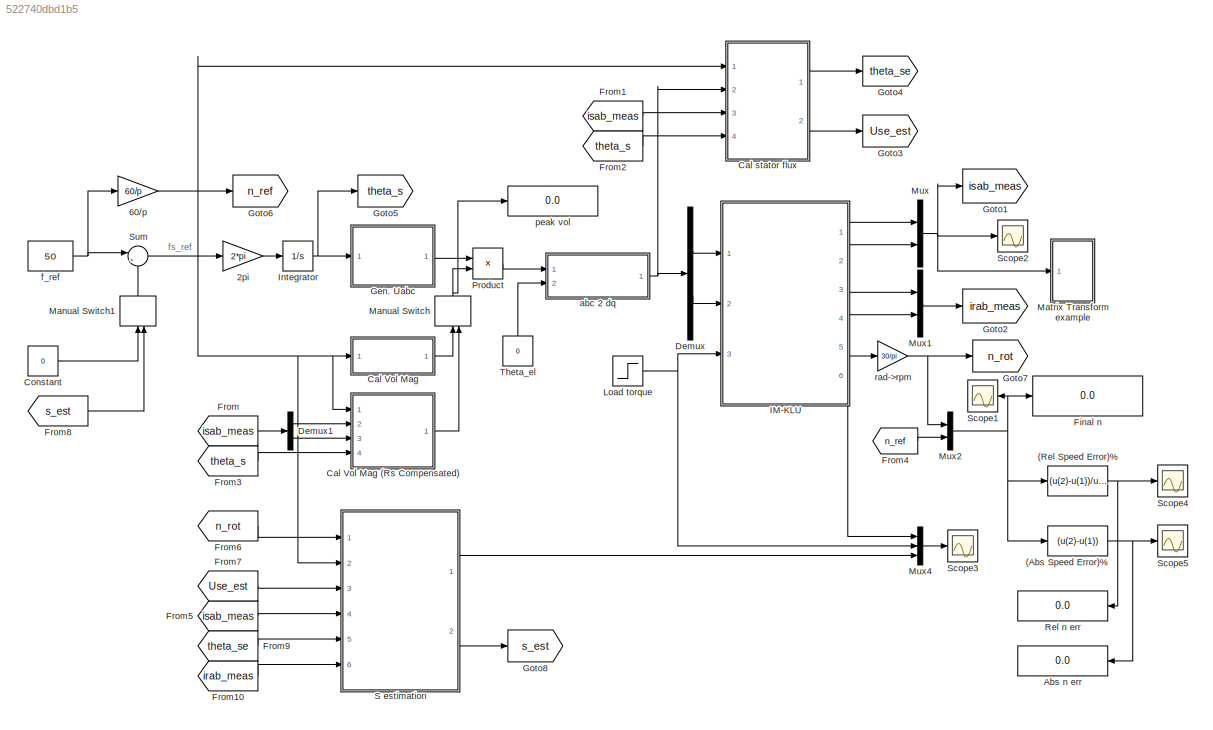
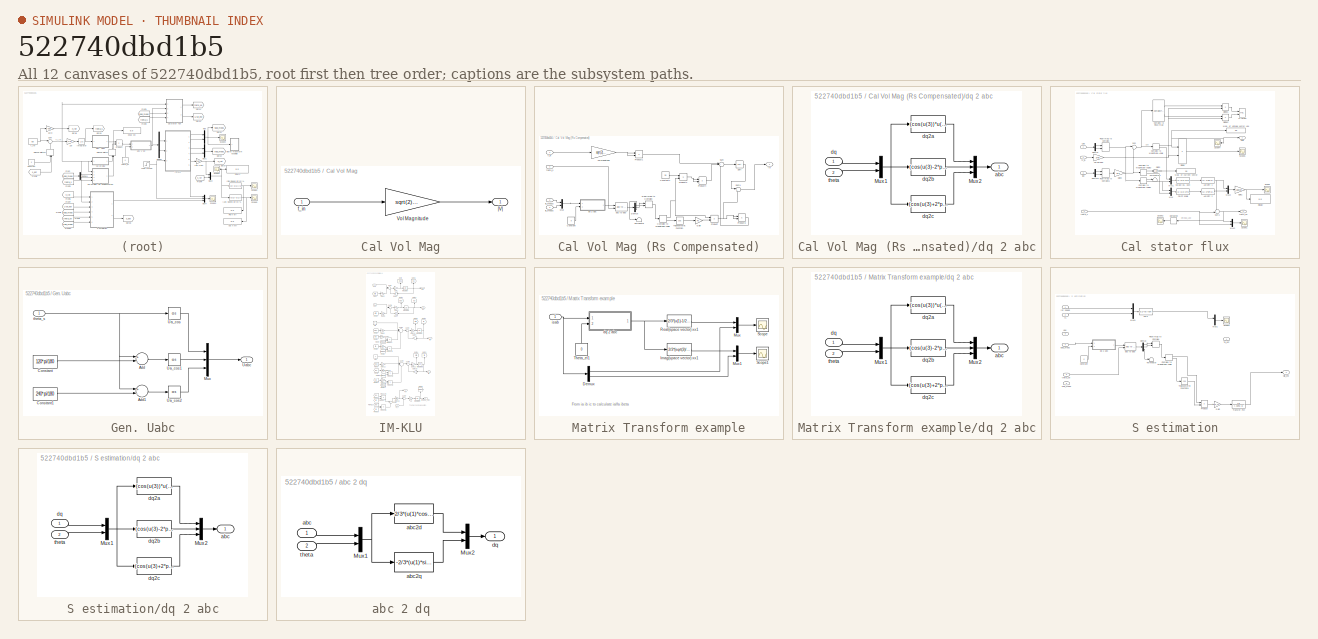
[diagram: thumbnail index - all 12 canvases of the model, root first then tree order]
MODEL slx_522740dbd1b5
KIND model
BLOCK [Fcn] (Abs Speed Error)%
  Expr = (u(2)-u(1))
BLOCK [Fcn] (Rel Speed Error)%
  Expr = (u(2)-u(1))/u(2)*100
BLOCK [Gain] 2pi
  Gain = 2*pi
  OutDataTypeStr = Inherit: Inherit via internal rule
  ParamDataTypeStr = Inherit: Inherit via internal rule
  SaturateOnIntegerOverflow = off
BLOCK [Gain] 60//p
  Gain = 60/p
  OutDataTypeStr = Inherit: Inherit via internal rule
  ParamDataTypeStr = Inherit: Inherit via internal rule
  SaturateOnIntegerOverflow = off
BLOCK [Display] Abs n err
  Decimation = 1
  Ports = [1]
BLOCK [SubSystem] Cal Vol Mag
  FunctionWithSeparateData = off
  MaskHideContents = off
  MinAlgLoopOccurrences = off
  Opaque = off
  Ports = [1, 1]
  PropExecContextOutsideSubsystem = off
  RTWSystemCode = Auto
  RequestExecContextInheritance = off
BLOCK [SubSystem] Cal Vol Mag (Rs Compensated)
  FunctionWithSeparateData = off
  MaskHideContents = off
  MinAlgLoopOccurrences = off
  Opaque = off
  Ports = [4, 1]
  PropExecContextOutsideSubsystem = off
  RTWSystemCode = Auto
  RequestExecContextInheritance = off
BLOCK [ComplexToMagnitudeAngle] Cal Vol Mag (Rs Compensated)/Complex to Magnitude-Angle
  Ports = [1, 2]
BLOCK [Constant] Cal Vol Mag (Rs Compensated)/Constant
  Value = 0
BLOCK [Constant] Cal Vol Mag (Rs Compensated)/Constant1
  Value = Rs
BLOCK [Demux] Cal Vol Mag (Rs Compensated)/Demux
  DisplayOption = bar
  Outputs = 3
  Ports = [1, 3]
BLOCK [Gain] Cal Vol Mag (Rs Compensated)/Gain
  Gain = Rs
  OutDataTypeStr = Inherit: Inherit via internal rule
  ParamDataTypeStr = Inherit: Inherit via internal rule
  SaturateOnIntegerOverflow = off
BLOCK [Mux] Cal Vol Mag (Rs Compensated)/Mux
  DisplayOption = bar
  Inputs = 2
  Ports = [2, 1]
BLOCK [Product] Cal Vol Mag (Rs Compensated)/Product
  InputSameDT = off
  OutDataTypeStr = Inherit: Inherit via internal rule
  Ports = [2, 1]
  RndMeth = Floor
  SaturateOnIntegerOverflow = off
BLOCK [Product] Cal Vol Mag (Rs Compensated)/Product1
  InputSameDT = off
  OutDataTypeStr = Inherit: Inherit via internal rule
  Ports = [2, 1]
  RndMeth = Floor
  SaturateOnIntegerOverflow = off
BLOCK [Product] Cal Vol Mag (Rs Compensated)/Product2
  InputSameDT = off
  OutDataTypeStr = Inherit: Inherit via internal rule
  Ports = [2, 1]
  RndMeth = Floor
  SaturateOnIntegerOverflow = off
BLOCK [Product] Cal Vol Mag (Rs Compensated)/Product3
  InputSameDT = off
  OutDataTypeStr = Inherit: Inherit via internal rule
  Ports = [2, 1]
  RndMeth = Floor
  SaturateOnIntegerOverflow = off
BLOCK [Product] Cal Vol Mag (Rs Compensated)/Product4
  InputSameDT = off
  OutDataTypeStr = Inherit: Inherit via internal rule
  Ports = [2, 1]
  RndMeth = Floor
  SaturateOnIntegerOverflow = off
BLOCK [RealImagToComplex] Cal Vol Mag (Rs Compensated)/Real-Imag to Complex
  Ports = [2, 1]
BLOCK [Sqrt] Cal Vol Mag (Rs Compensated)/Sqrt
BLOCK [Sum] Cal Vol Mag (Rs Compensated)/Sum
  IconShape = round
  InputSameDT = off
  Inputs = |+-+
  OutDataTypeStr = Inherit: Inherit via internal rule
  Ports = [3, 1]
  SaturateOnIntegerOverflow = off
BLOCK [Sum] Cal Vol Mag (Rs Compensated)/Sum1
  IconShape = round
  InputSameDT = off
  Inputs = |++
  OutDataTypeStr = Inherit: Inherit via internal rule
  Ports = [2, 1]
  SaturateOnIntegerOverflow = off
BLOCK [Terminator] Cal Vol Mag (Rs Compensated)/Terminator
BLOCK [Trigonometry] Cal Vol Mag (Rs Compensated)/Trigonometric Function
  Operator = cos
  Ports = [1, 1]
BLOCK [Gain] Cal Vol Mag (Rs Compensated)/Vol Magnitude
  Gain = sqrt(2)*Vs0/fR
  OutDataTypeStr = Inherit: Inherit via internal rule
  ParamDataTypeStr = Inherit: Inherit via internal rule
  SaturateOnIntegerOverflow = off
BLOCK [Reference] Cal Vol Mag (Rs Compensated)/abc to dq0  REF=powerlib_meascontrol/Transformations/abc to dq0
  Alignment = Aligned with phase A axis
  Ports = [2, 1]
  SourceBlock = powerlib_meascontrol/Transformations/abc to dq0
  SourceType = abc to dq0 Transformation
BLOCK [SubSystem] Cal Vol Mag (Rs Compensated)/dq 2 abc
  FunctionWithSeparateData = off
  MaskHideContents = off
  MinAlgLoopOccurrences = off
  Opaque = off
  Ports = [2, 1]
  PropExecContextOutsideSubsystem = off
  RTWSystemCode = Auto
  RequestExecContextInheritance = off
BLOCK [Mux] Cal Vol Mag (Rs Compensated)/dq 2 abc/Mux1
  DisplayOption = bar
  Inputs = 2
  Ports = [2, 1]
BLOCK [Mux] Cal Vol Mag (Rs Compensated)/dq 2 abc/Mux2
  DisplayOption = bar
  Inputs = 3
  Ports = [3, 1]
BLOCK [Outport] Cal Vol Mag (Rs Compensated)/dq 2 abc/abc
  IconDisplay = Port number
BLOCK [Inport] Cal Vol Mag (Rs Compensated)/dq 2 abc/dq
  IconDisplay = Port number
BLOCK [Fcn] Cal Vol Mag (Rs Compensated)/dq 2 abc/dq2a
  Expr = (cos(u(3))*u(1)-sin(u(3))*u(2))
BLOCK [Fcn] Cal Vol Mag (Rs Compensated)/dq 2 abc/dq2b
  Expr = (cos(u(3)-2*pi/3)*u(1)-sin(u(3)-2*pi/3)*u(2))
BLOCK [Fcn] Cal Vol Mag (Rs Compensated)/dq 2 abc/dq2c
  Expr = (cos(u(3)+2*pi/3)*u(1)-sin(u(3)+2*pi/3)*u(2))
BLOCK [Inport] Cal Vol Mag (Rs Compensated)/dq 2 abc/theta
  IconDisplay = Port number
  Port = 2
BLOCK [Inport] Cal Vol Mag (Rs Compensated)/f_in
  IconDisplay = Port number
BLOCK [Inport] Cal Vol Mag (Rs Compensated)/ia_measu
  IconDisplay = Port number
  Port = 2
BLOCK [Inport] Cal Vol Mag (Rs Compensated)/ib_measu
  IconDisplay = Port number
  Port = 3
BLOCK [Inport] Cal Vol Mag (Rs Compensated)/theta_s
  IconDisplay = Port number
  Port = 4
BLOCK [Outport] Cal Vol Mag (Rs Compensated)/|V|
  IconDisplay = Port number
BLOCK [Gain] Cal Vol Mag/Vol Magnitude
  Gain = sqrt(2)*Vs0/fR
  OutDataTypeStr = Inherit: Inherit via internal rule
  ParamDataTypeStr = Inherit: Inherit via internal rule
  SaturateOnIntegerOverflow = off
BLOCK [Inport] Cal Vol Mag/f_in
  IconDisplay = Port number
BLOCK [Outport] Cal Vol Mag/|V|
  IconDisplay = Port number
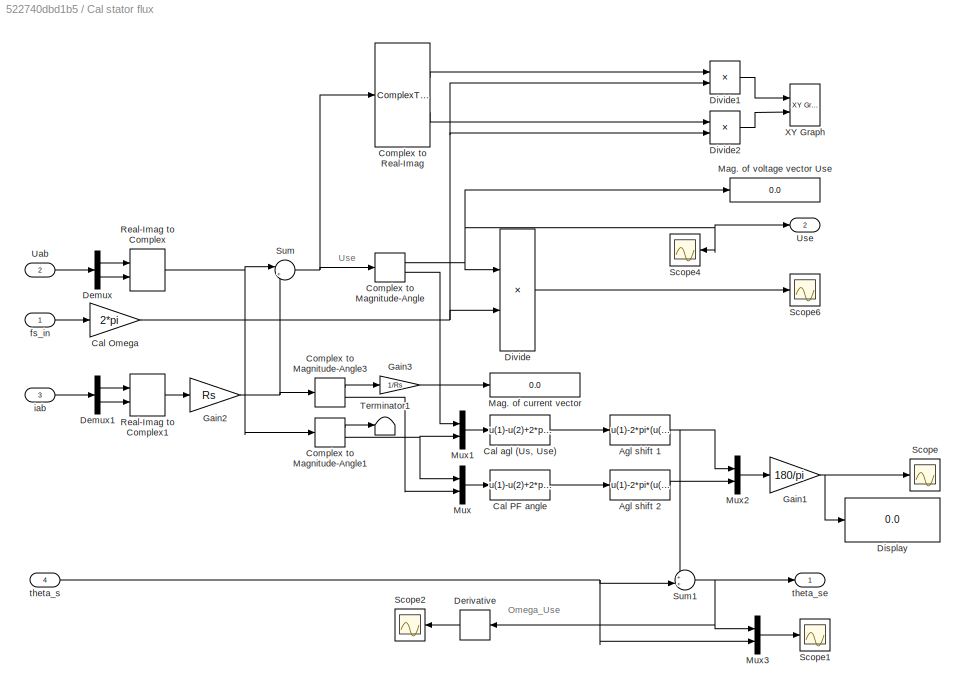
BLOCK [SubSystem] Cal stator flux
  FunctionWithSeparateData = off
  MaskHideContents = off
  MinAlgLoopOccurrences = off
  Opaque = off
  Ports = [4, 2]
  PropExecContextOutsideSubsystem = off
  RTWSystemCode = Auto
  RequestExecContextInheritance = off
BLOCK [Fcn] Cal stator flux/Agl shift 1
  Expr = u(1)-2*pi*(u(1)>pi)
BLOCK [Fcn] Cal stator flux/Agl shift 2
  Expr = u(1)-2*pi*(u(1)>pi)
BLOCK [Gain] Cal stator flux/Cal Omega
  Gain = 2*pi
  OutDataTypeStr = Inherit: Inherit via internal rule
  ParamDataTypeStr = Inherit: Inherit via internal rule
  SaturateOnIntegerOverflow = off
BLOCK [Fcn] Cal stator flux/Cal PF angle
  Expr = u(1)-u(2)+2*pi*((u(1)-u(2))<0)
BLOCK [Fcn] Cal stator flux/Cal agl (Us, Use)
  Expr = u(1)-u(2)+2*pi*((u(1)-u(2))<0)
BLOCK [ComplexToMagnitudeAngle] Cal stator flux/Complex to Magnitude-Angle
  Ports = [1, 2]
BLOCK [ComplexToMagnitudeAngle] Cal stator flux/Complex to Magnitude-Angle1
  Ports = [1, 2]
BLOCK [ComplexToMagnitudeAngle] Cal stator flux/Complex to Magnitude-Angle3
  Ports = [1, 2]
BLOCK [ComplexToRealImag] Cal stator flux/Complex to Real-Imag
  Ports = [1, 2]
BLOCK [Demux] Cal stator flux/Demux
  DisplayOption = bar
  Outputs = 2
  Ports = [1, 2]
BLOCK [Demux] Cal stator flux/Demux1
  DisplayOption = bar
  Outputs = 2
  Ports = [1, 2]
BLOCK [Derivative] Cal stator flux/Derivative
BLOCK [Display] Cal stator flux/Display
  Decimation = 1
  Ports = [1]
BLOCK [Product] Cal stator flux/Divide
  InputSameDT = off
  Inputs = */
  OutDataTypeStr = Inherit: Inherit via internal rule
  Ports = [2, 1]
  RndMeth = Floor
  SaturateOnIntegerOverflow = off
BLOCK [Product] Cal stator flux/Divide1
  InputSameDT = off
  Inputs = */
  OutDataTypeStr = Inherit: Inherit via internal rule
  Ports = [2, 1]
  RndMeth = Floor
  SaturateOnIntegerOverflow = off
BLOCK [Product] Cal stator flux/Divide2
  InputSameDT = off
  Inputs = */
  OutDataTypeStr = Inherit: Inherit via internal rule
  Ports = [2, 1]
  RndMeth = Floor
  SaturateOnIntegerOverflow = off
BLOCK [Gain] Cal stator flux/Gain1
  Gain = 180/pi
  OutDataTypeStr = Inherit: Inherit via internal rule
  ParamDataTypeStr = Inherit: Inherit via internal rule
  SaturateOnIntegerOverflow = off
BLOCK [Gain] Cal stator flux/Gain2
  Gain = Rs
  OutDataTypeStr = Inherit: Inherit via internal rule
  ParamDataTypeStr = Inherit: Inherit via internal rule
  SaturateOnIntegerOverflow = off
BLOCK [Gain] Cal stator flux/Gain3
  Gain = 1/Rs
  OutDataTypeStr = Inherit: Inherit via internal rule
  ParamDataTypeStr = Inherit: Inherit via internal rule
  SaturateOnIntegerOverflow = off
BLOCK [Display] Cal stator flux/Mag. of current vector
  Decimation = 1
  Ports = [1]
BLOCK [Display] Cal stator flux/Mag. of voltage vector Use
  Decimation = 1
  Ports = [1]
BLOCK [Mux] Cal stator flux/Mux
  DisplayOption = bar
  Inputs = 2
  Ports = [2, 1]
BLOCK [Mux] Cal stator flux/Mux1
  DisplayOption = bar
  Inputs = 2
  Ports = [2, 1]
BLOCK [Mux] Cal stator flux/Mux2
  DisplayOption = bar
  Inputs = 2
  Ports = [2, 1]
BLOCK [Mux] Cal stator flux/Mux3
  DisplayOption = bar
  Inputs = 2
  Ports = [2, 1]
BLOCK [RealImagToComplex] Cal stator flux/Real-Imag to Complex
  Ports = [2, 1]
BLOCK [RealImagToComplex] Cal stator flux/Real-Imag to Complex1
  Ports = [2, 1]
BLOCK [Scope] Cal stator flux/Scope
  DataFormat = StructureWithTime
  Floating = off
  LimitDataPoints = off
  NumInputPorts = 1
  Ports = [1]
  SampleTime = 0
  SaveName = ScopeData9
  ShowLegends = off
  YMax = 140
  YMin = -90
  ZoomMode = xonly
BLOCK [Scope] Cal stator flux/Scope1
  DataFormat = StructureWithTime
  Floating = off
  LimitDataPoints = off
  NumInputPorts = 1
  Ports = [1]
  SampleTime = 0
  SaveName = ScopeData5
  ShowLegends = off
  YMax = 140
  YMin = -90
BLOCK [Scope] Cal stator flux/Scope2
  DataFormat = StructureWithTime
  Floating = off
  LimitDataPoints = off
  NumInputPorts = 1
  Ports = [1]
  SampleTime = 0
  SaveName = ScopeData10
  ShowLegends = off
  YMax = 140
  YMin = -90
  ZoomMode = xonly
BLOCK [Scope] Cal stator flux/Scope4
  DataFormat = StructureWithTime
  Floating = off
  LimitDataPoints = off
  NumInputPorts = 1
  Ports = [1]
  SampleTime = 0
  SaveName = ScopeData21
  ShowLegends = off
  TimeRange = 0.2881844380403459
  YMax = 159.4
  YMin = 158.3
BLOCK [Scope] Cal stator flux/Scope6
  DataFormat = StructureWithTime
  Floating = off
  NumInputPorts = 1
  Ports = [1]
  SampleTime = 0
  SaveName = ScopeData6
  ShowLegends = off
  TimeRange = 0.2881844380403459
  YMax = 1.03987
  YMin = 0.940831
BLOCK [Sum] Cal stator flux/Sum
  IconShape = round
  InputSameDT = off
  Inputs = |+-
  OutDataTypeStr = Inherit: Inherit via internal rule
  Ports = [2, 1]
  SaturateOnIntegerOverflow = off
BLOCK [Sum] Cal stator flux/Sum1
  IconShape = round
  InputSameDT = off
  Inputs = ++|
  OutDataTypeStr = Inherit: Inherit via internal rule
  Ports = [2, 1]
  SaturateOnIntegerOverflow = off
BLOCK [Terminator] Cal stator flux/Terminator1
BLOCK [Inport] Cal stator flux/Uab
  IconDisplay = Port number
  Port = 2
BLOCK [Outport] Cal stator flux/Use
  IconDisplay = Port number
  Port = 2
BLOCK [Reference] Cal stator flux/XY Graph  REF=simulink/Sinks/XY Graph
  Ports = [2]
  SourceBlock = simulink/Sinks/XY Graph
  SourceType = XY scope.
  st = -1
  xmax = 1.5
  xmin = -1.5
  ymax = 1.5
  ymin = -1.5
BLOCK [Inport] Cal stator flux/fs_in
  IconDisplay = Port number
BLOCK [Inport] Cal stator flux/iab
  IconDisplay = Port number
  Port = 3
BLOCK [Inport] Cal stator flux/theta_s
  IconDisplay = Port number
  Port = 4
BLOCK [Outport] Cal stator flux/theta_se
  IconDisplay = Port number
BLOCK [Constant] Constant
  Value = 0
BLOCK [Demux] Demux
  DisplayOption = bar
  Outputs = 2
  Ports = [1, 2]
BLOCK [Demux] Demux1
  DisplayOption = bar
  Outputs = 2
  Ports = [1, 2]
BLOCK [Display] Final n
  Decimation = 1
  Format = long
  Ports = [1]
BLOCK [From] From
  CloseFcn = tagdialog Close
  GotoTag = isab_meas
BLOCK [From] From1
  CloseFcn = tagdialog Close
  GotoTag = isab_meas
BLOCK [From] From10
  CloseFcn = tagdialog Close
  GotoTag = irab_meas
BLOCK [From] From2
  CloseFcn = tagdialog Close
  GotoTag = theta_s
BLOCK [From] From3
  CloseFcn = tagdialog Close
  GotoTag = theta_s
BLOCK [From] From4
  CloseFcn = tagdialog Close
  GotoTag = n_ref
BLOCK [From] From5
  CloseFcn = tagdialog Close
  GotoTag = isab_meas
BLOCK [From] From6
  CloseFcn = tagdialog Close
  GotoTag = n_rot
BLOCK [From] From7
  CloseFcn = tagdialog Close
  GotoTag = Use_est
BLOCK [From] From8
  CloseFcn = tagdialog Close
  GotoTag = s_est
BLOCK [From] From9
  CloseFcn = tagdialog Close
  GotoTag = theta_se
BLOCK [SubSystem] Gen. Uabc
  FunctionWithSeparateData = off
  MaskHideContents = off
  MinAlgLoopOccurrences = off
  Opaque = off
  Ports = [1, 1]
  PropExecContextOutsideSubsystem = off
  RTWSystemCode = Auto
  RequestExecContextInheritance = off
BLOCK [Sum] Gen. Uabc/Add
  InputSameDT = off
  Inputs = +-
  OutDataTypeStr = Inherit: Inherit via internal rule
  Ports = [2, 1]
  SaturateOnIntegerOverflow = off
BLOCK [Sum] Gen. Uabc/Add1
  InputSameDT = off
  Inputs = +-
  OutDataTypeStr = Inherit: Inherit via internal rule
  Ports = [2, 1]
  SaturateOnIntegerOverflow = off
BLOCK [Constant] Gen. Uabc/Constant
  Value = 120*pi/180
BLOCK [Constant] Gen. Uabc/Constant1
  Value = 240*pi/180
BLOCK [Mux] Gen. Uabc/Mux
  DisplayOption = bar
  Inputs = 3
  Ports = [3, 1]
BLOCK [Trigonometry] Gen. Uabc/Ua_cos
  Operator = cos
  Ports = [1, 1]
BLOCK [Trigonometry] Gen. Uabc/Ua_cos1
  Operator = cos
  Ports = [1, 1]
BLOCK [Trigonometry] Gen. Uabc/Ua_cos2
  Operator = cos
  Ports = [1, 1]
BLOCK [Outport] Gen. Uabc/Uabc
  IconDisplay = Port number
BLOCK [Inport] Gen. Uabc/theta_s
  IconDisplay = Port number
BLOCK [Goto] Goto1
  GotoTag = isab_meas
BLOCK [Goto] Goto2
  GotoTag = irab_meas
BLOCK [Goto] Goto3
  GotoTag = Use_est
BLOCK [Goto] Goto4
  GotoTag = theta_se
BLOCK [Goto] Goto5
  GotoTag = theta_s
BLOCK [Goto] Goto6
  GotoTag = n_ref
BLOCK [Goto] Goto7
  GotoTag = n_rot
BLOCK [Goto] Goto8
  GotoTag = s_est
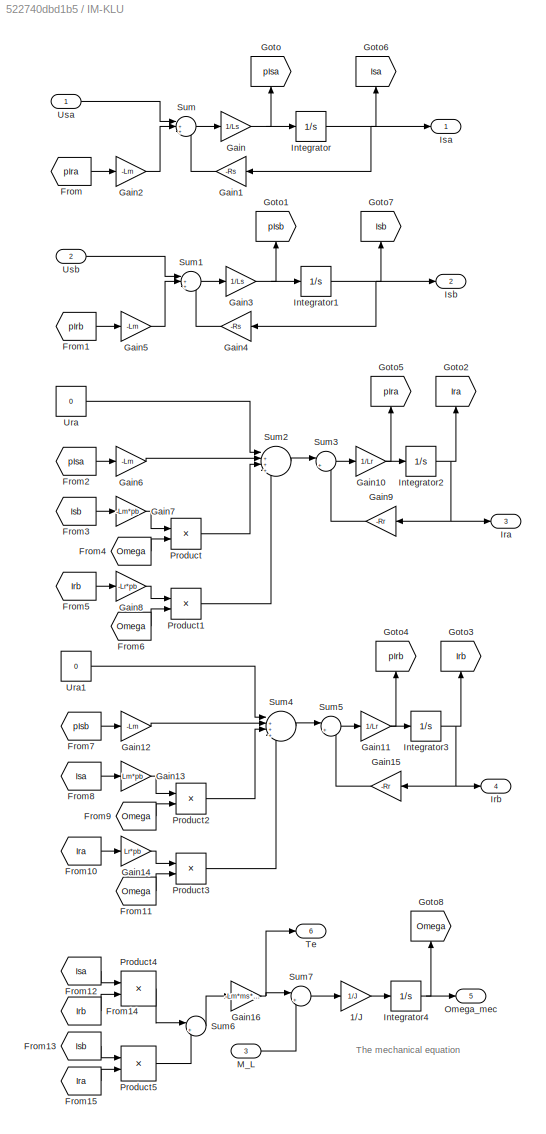
BLOCK [SubSystem] IM-KLU
  FunctionWithSeparateData = off
  MaskHideContents = off
  MinAlgLoopOccurrences = off
  Opaque = off
  Ports = [3, 6]
  PropExecContextOutsideSubsystem = off
  RTWSystemCode = Auto
  RequestExecContextInheritance = off
BLOCK [Gain] IM-KLU/1//J
  Gain = 1/J
BLOCK [From] IM-KLU/From
  CloseFcn = tagdialog Close
  GotoTag = pIra
BLOCK [From] IM-KLU/From1
  CloseFcn = tagdialog Close
  GotoTag = pIrb
BLOCK [From] IM-KLU/From10
  CloseFcn = tagdialog Close
  GotoTag = Ira
BLOCK [From] IM-KLU/From11
  CloseFcn = tagdialog Close
  GotoTag = Omega
BLOCK [From] IM-KLU/From12
  CloseFcn = tagdialog Close
  GotoTag = Isa
BLOCK [From] IM-KLU/From13
  CloseFcn = tagdialog Close
  GotoTag = Isb
BLOCK [From] IM-KLU/From14
  CloseFcn = tagdialog Close
  GotoTag = Irb
BLOCK [From] IM-KLU/From15
  CloseFcn = tagdialog Close
  GotoTag = Ira
BLOCK [From] IM-KLU/From2
  CloseFcn = tagdialog Close
  GotoTag = pIsa
BLOCK [From] IM-KLU/From3
  CloseFcn = tagdialog Close
  GotoTag = Isb
BLOCK [From] IM-KLU/From4
  CloseFcn = tagdialog Close
  GotoTag = Omega
BLOCK [From] IM-KLU/From5
  CloseFcn = tagdialog Close
  GotoTag = Irb
BLOCK [From] IM-KLU/From6
  CloseFcn = tagdialog Close
  GotoTag = Omega
BLOCK [From] IM-KLU/From7
  CloseFcn = tagdialog Close
  GotoTag = pIsb
BLOCK [From] IM-KLU/From8
  CloseFcn = tagdialog Close
  GotoTag = Isa
BLOCK [From] IM-KLU/From9
  CloseFcn = tagdialog Close
  GotoTag = Omega
BLOCK [Gain] IM-KLU/Gain
  Gain = 1/Ls
BLOCK [Gain] IM-KLU/Gain1
  Gain = -Rs
BLOCK [Gain] IM-KLU/Gain10
  Gain = 1/Lr
BLOCK [Gain] IM-KLU/Gain11
  Gain = 1/Lr
BLOCK [Gain] IM-KLU/Gain12
  Gain = -Lm
BLOCK [Gain] IM-KLU/Gain13
  Gain = Lm*pb
BLOCK [Gain] IM-KLU/Gain14
  Gain = Lr*pb
BLOCK [Gain] IM-KLU/Gain15
  Gain = -Rr
BLOCK [Gain] IM-KLU/Gain16
  Gain = -Lm*ms*pb/2
BLOCK [Gain] IM-KLU/Gain2
  Gain = -Lm
BLOCK [Gain] IM-KLU/Gain3
  Gain = 1/Ls
BLOCK [Gain] IM-KLU/Gain4
  Gain = -Rs
BLOCK [Gain] IM-KLU/Gain5
  Gain = -Lm
BLOCK [Gain] IM-KLU/Gain6
  Gain = -Lm
BLOCK [Gain] IM-KLU/Gain7
  Gain = -Lm*pb
BLOCK [Gain] IM-KLU/Gain8
  Gain = -Lr*pb
BLOCK [Gain] IM-KLU/Gain9
  Gain = -Rr
BLOCK [Goto] IM-KLU/Goto
  GotoTag = pIsa
BLOCK [Goto] IM-KLU/Goto1
  GotoTag = pIsb
BLOCK [Goto] IM-KLU/Goto2
  GotoTag = Ira
BLOCK [Goto] IM-KLU/Goto3
  GotoTag = Irb
BLOCK [Goto] IM-KLU/Goto4
  GotoTag = pIrb
BLOCK [Goto] IM-KLU/Goto5
  GotoTag = pIra
BLOCK [Goto] IM-KLU/Goto6
  GotoTag = Isa
BLOCK [Goto] IM-KLU/Goto7
  GotoTag = Isb
BLOCK [Goto] IM-KLU/Goto8
  GotoTag = Omega
BLOCK [Integrator] IM-KLU/Integrator
  Ports = [1, 1]
BLOCK [Integrator] IM-KLU/Integrator1
  Ports = [1, 1]
BLOCK [Integrator] IM-KLU/Integrator2
  Ports = [1, 1]
BLOCK [Integrator] IM-KLU/Integrator3
  Ports = [1, 1]
BLOCK [Integrator] IM-KLU/Integrator4
  Ports = [1, 1]
BLOCK [Outport] IM-KLU/Ira
  IconDisplay = Port number
  Port = 3
BLOCK [Outport] IM-KLU/Irb
  IconDisplay = Port number
  Port = 4
BLOCK [Outport] IM-KLU/Isa
  IconDisplay = Port number
BLOCK [Outport] IM-KLU/Isb
  IconDisplay = Port number
  Port = 2
BLOCK [Inport] IM-KLU/M_L
  IconDisplay = Port number
  Port = 3
BLOCK [Outport] IM-KLU/Omega_mec
  IconDisplay = Port number
  Port = 5
BLOCK [Product] IM-KLU/Product
  Ports = [2, 1]
BLOCK [Product] IM-KLU/Product1
  Ports = [2, 1]
BLOCK [Product] IM-KLU/Product2
  Ports = [2, 1]
BLOCK [Product] IM-KLU/Product3
  Ports = [2, 1]
BLOCK [Product] IM-KLU/Product4
  Ports = [2, 1]
BLOCK [Product] IM-KLU/Product5
  Ports = [2, 1]
BLOCK [Sum] IM-KLU/Sum
  IconShape = round
  Inputs = |+++
  Ports = [3, 1]
BLOCK [Sum] IM-KLU/Sum1
  IconShape = round
  Inputs = |+++
  Ports = [3, 1]
BLOCK [Sum] IM-KLU/Sum2
  IconShape = round
  Inputs = |++++
  Ports = [4, 1]
BLOCK [Sum] IM-KLU/Sum3
  IconShape = round
  Inputs = |++
  Ports = [2, 1]
BLOCK [Sum] IM-KLU/Sum4
  IconShape = round
  Inputs = |++++
  Ports = [4, 1]
BLOCK [Sum] IM-KLU/Sum5
  IconShape = round
  Inputs = |++
  Ports = [2, 1]
BLOCK [Sum] IM-KLU/Sum6
  IconShape = round
  Inputs = |+-
  Ports = [2, 1]
BLOCK [Sum] IM-KLU/Sum7
  IconShape = round
  Inputs = |+-
  Ports = [2, 1]
BLOCK [Outport] IM-KLU/Te
  IconDisplay = Port number
  Port = 6
BLOCK [Constant] IM-KLU/Ura
  Value = 0
BLOCK [Constant] IM-KLU/Ura1
  Value = 0
BLOCK [Inport] IM-KLU/Usa
  IconDisplay = Port number
BLOCK [Inport] IM-KLU/Usb
  IconDisplay = Port number
  Port = 2
BLOCK [Integrator] Integrator
  Ports = [1, 1]
BLOCK [Step] Load torque
  After = 14.6912
  SampleTime = 0
BLOCK [ManualSwitch] Manual Switch
  CurrentSetting = 0
BLOCK [ManualSwitch] Manual Switch1
  CurrentSetting = 0
BLOCK [SubSystem] Matrix Transform example
  FunctionWithSeparateData = off
  MaskHideContents = off
  MinAlgLoopOccurrences = off
  Opaque = off
  Ports = [1]
  PropExecContextOutsideSubsystem = off
  RTWSystemCode = Auto
  RequestExecContextInheritance = off
BLOCK [Demux] Matrix Transform example/Demux
  DisplayOption = bar
  Outputs = 2
  Ports = [1, 2]
BLOCK [Fcn] Matrix Transform example/Imag(space vector) xx1
  Expr = 2/3*(sqrt(3)/2*u(2)-sqrt(3)/2*u(3))
BLOCK [Mux] Matrix Transform example/Mux
  DisplayOption = bar
  Inputs = 2
  Ports = [2, 1]
BLOCK [Mux] Matrix Transform example/Mux1
  DisplayOption = bar
  Inputs = 2
  Ports = [2, 1]
BLOCK [Fcn] Matrix Transform example/Real(space vector) xx1
  Expr = 2/3*(u(1)-1/2*u(2)-1/2*u(3))
BLOCK [Scope] Matrix Transform example/Scope
  DataFormat = StructureWithTime
  Floating = off
  NumInputPorts = 1
  Ports = [1]
  SampleTime = 0
  SaveName = ScopeData7
  ShowLegends = off
  ZoomMode = xonly
BLOCK [Scope] Matrix Transform example/Scope1
  DataFormat = StructureWithTime
  Floating = off
  NumInputPorts = 1
  Ports = [1]
  SampleTime = 0
  SaveName = ScopeData8
  ShowLegends = off
  ZoomMode = xonly
BLOCK [Constant] Matrix Transform example/Theta_el1
  Value = 0
BLOCK [SubSystem] Matrix Transform example/dq 2 abc
  FunctionWithSeparateData = off
  MaskHideContents = off
  MinAlgLoopOccurrences = off
  Opaque = off
  Ports = [2, 1]
  PropExecContextOutsideSubsystem = off
  RTWSystemCode = Auto
  RequestExecContextInheritance = off
BLOCK [Mux] Matrix Transform example/dq 2 abc/Mux1
  DisplayOption = bar
  Inputs = 2
  Ports = [2, 1]
BLOCK [Mux] Matrix Transform example/dq 2 abc/Mux2
  DisplayOption = bar
  Inputs = 3
  Ports = [3, 1]
BLOCK [Outport] Matrix Transform example/dq 2 abc/abc
  IconDisplay = Port number
BLOCK [Inport] Matrix Transform example/dq 2 abc/dq
  IconDisplay = Port number
BLOCK [Fcn] Matrix Transform example/dq 2 abc/dq2a
  Expr = (cos(u(3))*u(1)-sin(u(3))*u(2))
BLOCK [Fcn] Matrix Transform example/dq 2 abc/dq2b
  Expr = (cos(u(3)-2*pi/3)*u(1)-sin(u(3)-2*pi/3)*u(2))
BLOCK [Fcn] Matrix Transform example/dq 2 abc/dq2c
  Expr = (cos(u(3)+2*pi/3)*u(1)-sin(u(3)+2*pi/3)*u(2))
BLOCK [Inport] Matrix Transform example/dq 2 abc/theta
  IconDisplay = Port number
  Port = 2
BLOCK [Inport] Matrix Transform example/isab
  IconDisplay = Port number
BLOCK [Mux] Mux
  DisplayOption = bar
  Inputs = 2
  Ports = [2, 1]
BLOCK [Mux] Mux1
  DisplayOption = bar
  Inputs = 2
  Ports = [2, 1]
BLOCK [Mux] Mux2
  DisplayOption = bar
  Inputs = 2
  Ports = [2, 1]
BLOCK [Mux] Mux4
  DisplayOption = bar
  Inputs = 3
  Ports = [3, 1]
BLOCK [Product] Product
  InputSameDT = off
  OutDataTypeStr = Inherit: Inherit via internal rule
  Ports = [2, 1]
  SaturateOnIntegerOverflow = off
BLOCK [Display] Rel n err
  Decimation = 1
  Ports = [1]
BLOCK [SubSystem] S estimation
  FunctionWithSeparateData = off
  MaskHideContents = off
  MinAlgLoopOccurrences = off
  Opaque = off
  Ports = [6, 2]
  PropExecContextOutsideSubsystem = off
  RTWSystemCode = Auto
  RequestExecContextInheritance = off
BLOCK [Fcn] S estimation/Cal S
  Expr = (u(1)*p)/(60*u(2))
BLOCK [ComplexToMagnitudeAngle] S estimation/Complex to Magnitude-Angle
  Ports = [1, 2]
BLOCK [Constant] S estimation/Constant
  Value = 0
BLOCK [Demux] S estimation/Demux
  DisplayOption = bar
  Outputs = 3
  Ports = [1, 3]
BLOCK [Gain] S estimation/Gain
  Gain = freq_sn/IactRated
  OutDataTypeStr = Inherit: Inherit via internal rule
  ParamDataTypeStr = Inherit: Inherit via internal rule
  SaturateOnIntegerOverflow = off
BLOCK [Mux] S estimation/Mux1
  DisplayOption = bar
  Inputs = 2
  Ports = [2, 1]
BLOCK [Mux] S estimation/Mux9
  DisplayOption = bar
  Inputs = 2
  Ports = [2, 1]
BLOCK [Product] S estimation/Product
  InputSameDT = off
  OutDataTypeStr = Inherit: Inherit via internal rule
  Ports = [2, 1]
  RndMeth = Floor
  SaturateOnIntegerOverflow = off
BLOCK [RealImagToComplex] S estimation/Real-Imag to Complex
  Ports = [2, 1]
BLOCK [Scope] S estimation/Scope1
  DataFormat = StructureWithTime
  Floating = off
  NumInputPorts = 1
  Ports = [1]
  SampleTime = 0
  SaveName = ScopeData11
  ShowLegends = off
  YMax = 1.05
  YMin = 0
BLOCK [Outport] S estimation/Te_est
  IconDisplay = Port number
BLOCK [Terminator] S estimation/Terminator
BLOCK [TransferFcn] S estimation/Transfer Fcn
  Denominator = [.0091 1]
BLOCK [Trigonometry] S estimation/Trigonometric Function1
  Operator = cos
  Ports = [1, 1]
BLOCK [Inport] S estimation/Use
  IconDisplay = Port number
  Port = 3
BLOCK [Reference] S estimation/abc to dq0  REF=powerlib_meascontrol/Transformations/abc to dq0
  Alignment = Aligned with phase A axis
  Ports = [2, 1]
  SourceBlock = powerlib_meascontrol/Transformations/abc to dq0
  SourceType = abc to dq0 Transformation
BLOCK [SubSystem] S estimation/dq 2 abc
  FunctionWithSeparateData = off
  MaskHideContents = off
  MinAlgLoopOccurrences = off
  Opaque = off
  Ports = [2, 1]
  PropExecContextOutsideSubsystem = off
  RTWSystemCode = Auto
  RequestExecContextInheritance = off
BLOCK [Mux] S estimation/dq 2 abc/Mux1
  DisplayOption = bar
  Inputs = 2
  Ports = [2, 1]
BLOCK [Mux] S estimation/dq 2 abc/Mux2
  DisplayOption = bar
  Inputs = 3
  Ports = [3, 1]
BLOCK [Outport] S estimation/dq 2 abc/abc
  IconDisplay = Port number
BLOCK [Inport] S estimation/dq 2 abc/dq
  IconDisplay = Port number
BLOCK [Fcn] S estimation/dq 2 abc/dq2a
  Expr = (cos(u(3))*u(1)-sin(u(3))*u(2))
BLOCK [Fcn] S estimation/dq 2 abc/dq2b
  Expr = (cos(u(3)-2*pi/3)*u(1)-sin(u(3)-2*pi/3)*u(2))
BLOCK [Fcn] S estimation/dq 2 abc/dq2c
  Expr = (cos(u(3)+2*pi/3)*u(1)-sin(u(3)+2*pi/3)*u(2))
BLOCK [Inport] S estimation/dq 2 abc/theta
  IconDisplay = Port number
  Port = 2
BLOCK [Inport] S estimation/fs
  IconDisplay = Port number
  Port = 2
BLOCK [Inport] S estimation/irab_meas
  IconDisplay = Port number
  Port = 6
BLOCK [Inport] S estimation/isab_meas
  IconDisplay = Port number
  Port = 4
BLOCK [Inport] S estimation/rot speed
  IconDisplay = Port number
BLOCK [Outport] S estimation/slip_est
  IconDisplay = Port number
  Port = 2
BLOCK [Inport] S estimation/theta_se
  IconDisplay = Port number
  Port = 5
BLOCK [Scope] Scope1
  DataFormat = StructureWithTime
  Floating = off
  LimitDataPoints = off
  NumInputPorts = 1
  Ports = [1]
  SampleTime = 0
  SaveName = ScopeData2
  ShowLegends = off
  TimeRange = 0.2881844380403459
  YMax = 1500
  YMin = 1435
  ZoomMode = yonly
BLOCK [Scope] Scope2
  DataFormat = StructureWithTime
  Floating = off
  NumInputPorts = 1
  Ports = [1]
  SampleTime = 0
  ShowLegends = off
  YMax = 7
  YMin = -7
  ZoomMode = xonly
BLOCK [Scope] Scope3
  DataFormat = StructureWithTime
  Floating = off
  LimitDataPoints = off
  NumInputPorts = 1
  Ports = [1]
  SampleTime = 0
  SaveName = ScopeData1
  ShowLegends = off
  YMax = 25
  YMin = -2.5
  ZoomMode = yonly
BLOCK [Scope] Scope4
  DataFormat = StructureWithTime
  Floating = off
  NumInputPorts = 1
  Ports = [1]
  SampleTime = 0
  SaveName = ScopeData3
  ShowLegends = off
  TimeRange = 3
  YMax = 5.021
  YMin = 5.02075
  ZoomMode = yonly
BLOCK [Scope] Scope5
  DataFormat = StructureWithTime
  Floating = off
  NumInputPorts = 1
  Ports = [1]
  SampleTime = 0
  SaveName = ScopeData4
  ShowLegends = off
  TimeRange = 0.2881844380403459
  YMax = 1197.83
  YMin = 0
  ZoomMode = yonly
BLOCK [Sum] Sum
  IconShape = round
  InputSameDT = off
  Inputs = |++
  OutDataTypeStr = Inherit: Inherit via internal rule
  Ports = [2, 1]
  SaturateOnIntegerOverflow = off
BLOCK [Constant] Theta_el
  Value = 0
BLOCK [SubSystem] abc 2 dq
  FunctionWithSeparateData = off
  MaskHideContents = off
  MinAlgLoopOccurrences = off
  Opaque = off
  Ports = [2, 1]
  PropExecContextOutsideSubsystem = off
  RTWSystemCode = Auto
  RequestExecContextInheritance = off
BLOCK [Mux] abc 2 dq/Mux1
  DisplayOption = bar
  Inputs = 2
  Ports = [2, 1]
BLOCK [Mux] abc 2 dq/Mux2
  DisplayOption = bar
  Inputs = 2
  Ports = [2, 1]
BLOCK [Inport] abc 2 dq/abc
  IconDisplay = Port number
BLOCK [Fcn] abc 2 dq/abc2d
  Expr = 2/3*(u(1)*cos(u(4))+u(2)*cos(u(4)-2*pi/3)+u(3)*cos(u(4)-4*pi/3))
BLOCK [Fcn] abc 2 dq/abc2q
  Expr = -2/3*(u(1)*sin(u(4))+u(2)*sin(u(4)-2*pi/3)+u(3)*sin(u(4)-4*pi/3))
BLOCK [Outport] abc 2 dq/dq
  IconDisplay = Port number
BLOCK [Inport] abc 2 dq/theta
  IconDisplay = Port number
  Port = 2
BLOCK [Constant] f_ref
  Value = 50
BLOCK [Display] peak vol
  Decimation = 1
  Ports = [1]
BLOCK [Gain] rad->rpm
  Gain = 30/pi
ANNOTATION (root): fs_ref
ANNOTATION Cal stator flux: Omega_Use
ANNOTATION Cal stator flux: Use
ANNOTATION IM-KLU: The mechanical equation
ANNOTATION Matrix Transform example: From ia ib ic to calculate ialfa ibeta
NET (Abs Speed Error)%:1 -> Abs n err:1, Scope5:1
NET (Rel Speed Error)%:1 -> Rel n err:1, Scope4:1
LINE 2pi:1 -> Integrator:1
LINE 60//p:1 -> Goto6:1
NET Cal Vol Mag (Rs Compensated)/Complex to Magnitude-Angle:1 -> Cal Vol Mag (Rs Compensated)/Product2:2, Cal Vol Mag (Rs Compensated)/Product:1
LINE Cal Vol Mag (Rs Compensated)/Complex to Magnitude-Angle:2 -> Cal Vol Mag (Rs Compensated)/Trigonometric Function:1
LINE Cal Vol Mag (Rs Compensated)/Constant1:1 -> Cal Vol Mag (Rs Compensated)/Product2:1
LINE Cal Vol Mag (Rs Compensated)/Constant:1 -> Cal Vol Mag (Rs Compensated)/dq 2 abc:2
LINE Cal Vol Mag (Rs Compensated)/Demux:1 -> Cal Vol Mag (Rs Compensated)/Real-Imag to Complex:1
LINE Cal Vol Mag (Rs Compensated)/Demux:2 -> Cal Vol Mag (Rs Compensated)/Real-Imag to Complex:2
LINE Cal Vol Mag (Rs Compensated)/Demux:3 -> Cal Vol Mag (Rs Compensated)/Terminator:1
LINE Cal Vol Mag (Rs Compensated)/Gain:1 -> Cal Vol Mag (Rs Compensated)/Product:2
LINE Cal Vol Mag (Rs Compensated)/Mux:1 -> Cal Vol Mag (Rs Compensated)/dq 2 abc:1
LINE Cal Vol Mag (Rs Compensated)/Product1:1 -> Cal Vol Mag (Rs Compensated)/Sum:1
NET Cal Vol Mag (Rs Compensated)/Product2:1 -> Cal Vol Mag (Rs Compensated)/Product4:1, Cal Vol Mag (Rs Compensated)/Product4:2
LINE Cal Vol Mag (Rs Compensated)/Product3:1 -> Cal Vol Mag (Rs Compensated)/Sum:3
LINE Cal Vol Mag (Rs Compensated)/Product4:1 -> Cal Vol Mag (Rs Compensated)/Sum:2
NET Cal Vol Mag (Rs Compensated)/Product:1 -> Cal Vol Mag (Rs Compensated)/Product3:1, Cal Vol Mag (Rs Compensated)/Product3:2, Cal Vol Mag (Rs Compensated)/Sum1:2
LINE Cal Vol Mag (Rs Compensated)/Real-Imag to Complex:1 -> Cal Vol Mag (Rs Compensated)/Complex to Magnitude-Angle:1
LINE Cal Vol Mag (Rs Compensated)/Sqrt:1 -> Cal Vol Mag (Rs Compensated)/Sum1:1
LINE Cal Vol Mag (Rs Compensated)/Sum1:1 -> Cal Vol Mag (Rs Compensated)/|V|:1
LINE Cal Vol Mag (Rs Compensated)/Sum:1 -> Cal Vol Mag (Rs Compensated)/Sqrt:1
LINE Cal Vol Mag (Rs Compensated)/Trigonometric Function:1 -> Cal Vol Mag (Rs Compensated)/Gain:1
NET Cal Vol Mag (Rs Compensated)/Vol Magnitude:1 -> Cal Vol Mag (Rs Compensated)/Product1:1, Cal Vol Mag (Rs Compensated)/Product1:2
LINE Cal Vol Mag (Rs Compensated)/abc to dq0:1 -> Cal Vol Mag (Rs Compensated)/Demux:1
NET Cal Vol Mag (Rs Compensated)/dq 2 abc/Mux1:1 -> Cal Vol Mag (Rs Compensated)/dq 2 abc/dq2a:1, Cal Vol Mag (Rs Compensated)/dq 2 abc/dq2b:1, Cal Vol Mag (Rs Compensated)/dq 2 abc/dq2c:1
LINE Cal Vol Mag (Rs Compensated)/dq 2 abc/Mux2:1 -> Cal Vol Mag (Rs Compensated)/dq 2 abc/abc:1
LINE Cal Vol Mag (Rs Compensated)/dq 2 abc/dq2a:1 -> Cal Vol Mag (Rs Compensated)/dq 2 abc/Mux2:1
LINE Cal Vol Mag (Rs Compensated)/dq 2 abc/dq2b:1 -> Cal Vol Mag (Rs Compensated)/dq 2 abc/Mux2:2
LINE Cal Vol Mag (Rs Compensated)/dq 2 abc/dq2c:1 -> Cal Vol Mag (Rs Compensated)/dq 2 abc/Mux2:3
LINE Cal Vol Mag (Rs Compensated)/dq 2 abc/dq:1 -> Cal Vol Mag (Rs Compensated)/dq 2 abc/Mux1:1
LINE Cal Vol Mag (Rs Compensated)/dq 2 abc/theta:1 -> Cal Vol Mag (Rs Compensated)/dq 2 abc/Mux1:2
LINE Cal Vol Mag (Rs Compensated)/dq 2 abc:1 -> Cal Vol Mag (Rs Compensated)/abc to dq0:1
LINE Cal Vol Mag (Rs Compensated)/f_in:1 -> Cal Vol Mag (Rs Compensated)/Vol Magnitude:1
LINE Cal Vol Mag (Rs Compensated)/ia_measu:1 -> Cal Vol Mag (Rs Compensated)/Mux:1
LINE Cal Vol Mag (Rs Compensated)/ib_measu:1 -> Cal Vol Mag (Rs Compensated)/Mux:2
LINE Cal Vol Mag (Rs Compensated)/theta_s:1 -> Cal Vol Mag (Rs Compensated)/abc to dq0:2
LINE Cal Vol Mag (Rs Compensated):1 -> Manual Switch:2
LINE Cal Vol Mag/Vol Magnitude:1 -> Cal Vol Mag/|V|:1
LINE Cal Vol Mag/f_in:1 -> Cal Vol Mag/Vol Magnitude:1
LINE Cal Vol Mag:1 -> Manual Switch:1
NET Cal stator flux/Agl shift 1:1 -> Cal stator flux/Mux2:1, Cal stator flux/Sum1:1
LINE Cal stator flux/Agl shift 2:1 -> Cal stator flux/Mux2:2
NET Cal stator flux/Cal Omega:1 -> Cal stator flux/Divide1:2, Cal stator flux/Divide2:2, Cal stator flux/Divide:2
LINE Cal stator flux/Cal PF angle:1 -> Cal stator flux/Agl shift 2:1
LINE Cal stator flux/Cal agl (Us, Use):1 -> Cal stator flux/Agl shift 1:1
LINE Cal stator flux/Complex to Magnitude-Angle1:1 -> Cal stator flux/Terminator1:1
NET Cal stator flux/Complex to Magnitude-Angle1:2 -> Cal stator flux/Mux1:2, Cal stator flux/Mux:1
LINE Cal stator flux/Complex to Magnitude-Angle3:1 -> Cal stator flux/Gain3:1
LINE Cal stator flux/Complex to Magnitude-Angle3:2 -> Cal stator flux/Mux:2
NET Cal stator flux/Complex to Magnitude-Angle:1 -> Cal stator flux/Divide:1, Cal stator flux/Mag. of voltage vector Use:1, Cal stator flux/Scope4:1, Cal stator flux/Use:1
LINE Cal stator flux/Complex to Magnitude-Angle:2 -> Cal stator flux/Mux1:1
LINE Cal stator flux/Complex to Real-Imag:1 -> Cal stator flux/Divide1:1
LINE Cal stator flux/Complex to Real-Imag:2 -> Cal stator flux/Divide2:1
LINE Cal stator flux/Demux1:1 -> Cal stator flux/Real-Imag to Complex1:1
LINE Cal stator flux/Demux1:2 -> Cal stator flux/Real-Imag to Complex1:2
LINE Cal stator flux/Demux:1 -> Cal stator flux/Real-Imag to Complex:1
LINE Cal stator flux/Demux:2 -> Cal stator flux/Real-Imag to Complex:2
LINE Cal stator flux/Derivative:1 -> Cal stator flux/Scope2:1
LINE Cal stator flux/Divide1:1 -> Cal stator flux/XY Graph:1
LINE Cal stator flux/Divide2:1 -> Cal stator flux/XY Graph:2
LINE Cal stator flux/Divide:1 -> Cal stator flux/Scope6:1
NET Cal stator flux/Gain1:1 -> Cal stator flux/Display:1, Cal stator flux/Scope:1
NET Cal stator flux/Gain2:1 -> Cal stator flux/Complex to Magnitude-Angle3:1, Cal stator flux/Sum:2
LINE Cal stator flux/Gain3:1 -> Cal stator flux/Mag. of current vector:1
LINE Cal stator flux/Mux1:1 -> Cal stator flux/Cal agl (Us, Use):1
LINE Cal stator flux/Mux2:1 -> Cal stator flux/Gain1:1
LINE Cal stator flux/Mux3:1 -> Cal stator flux/Scope1:1
LINE Cal stator flux/Mux:1 -> Cal stator flux/Cal PF angle:1
LINE Cal stator flux/Real-Imag to Complex1:1 -> Cal stator flux/Gain2:1
NET Cal stator flux/Real-Imag to Complex:1 -> Cal stator flux/Complex to Magnitude-Angle1:1, Cal stator flux/Sum:1
NET Cal stator flux/Sum1:1 -> Cal stator flux/Derivative:1, Cal stator flux/Mux3:1, Cal stator flux/theta_se:1
NET Cal stator flux/Sum:1 -> Cal stator flux/Complex to Magnitude-Angle:1, Cal stator flux/Complex to Real-Imag:1
LINE Cal stator flux/Uab:1 -> Cal stator flux/Demux:1
LINE Cal stator flux/fs_in:1 -> Cal stator flux/Cal Omega:1
LINE Cal stator flux/iab:1 -> Cal stator flux/Demux1:1
NET Cal stator flux/theta_s:1 -> Cal stator flux/Mux3:2, Cal stator flux/Sum1:2
LINE Cal stator flux:1 -> Goto4:1
LINE Cal stator flux:2 -> Goto3:1
LINE Constant:1 -> Manual Switch1:1
LINE Demux1:1 -> Cal Vol Mag (Rs Compensated):2
LINE Demux1:2 -> Cal Vol Mag (Rs Compensated):3
LINE Demux:1 -> IM-KLU:1
LINE Demux:2 -> IM-KLU:2
LINE From10:1 -> S estimation:6
LINE From1:1 -> Cal stator flux:3
LINE From2:1 -> Cal stator flux:4
LINE From3:1 -> Cal Vol Mag (Rs Compensated):4
LINE From4:1 -> Mux2:2
LINE From5:1 -> S estimation:4
LINE From6:1 -> S estimation:1
LINE From7:1 -> S estimation:3
LINE From8:1 -> Manual Switch1:2
LINE From9:1 -> S estimation:5
LINE From:1 -> Demux1:1
LINE Gen. Uabc/Add1:1 -> Gen. Uabc/Ua_cos2:1
LINE Gen. Uabc/Add:1 -> Gen. Uabc/Ua_cos1:1
LINE Gen. Uabc/Constant1:1 -> Gen. Uabc/Add1:2
LINE Gen. Uabc/Constant:1 -> Gen. Uabc/Add:2
LINE Gen. Uabc/Mux:1 -> Gen. Uabc/Uabc:1
LINE Gen. Uabc/Ua_cos1:1 -> Gen. Uabc/Mux:2
LINE Gen. Uabc/Ua_cos2:1 -> Gen. Uabc/Mux:3
LINE Gen. Uabc/Ua_cos:1 -> Gen. Uabc/Mux:1
NET Gen. Uabc/theta_s:1 -> Gen. Uabc/Add1:1, Gen. Uabc/Add:1, Gen. Uabc/Ua_cos:1
LINE Gen. Uabc:1 -> Product:1
LINE IM-KLU/1//J:1 -> IM-KLU/Integrator4:1
LINE IM-KLU/From10:1 -> IM-KLU/Gain14:1
LINE IM-KLU/From11:1 -> IM-KLU/Product3:2
LINE IM-KLU/From12:1 -> IM-KLU/Product4:1
LINE IM-KLU/From13:1 -> IM-KLU/Product5:1
LINE IM-KLU/From14:1 -> IM-KLU/Product4:2
LINE IM-KLU/From15:1 -> IM-KLU/Product5:2
LINE IM-KLU/From1:1 -> IM-KLU/Gain5:1
LINE IM-KLU/From2:1 -> IM-KLU/Gain6:1
LINE IM-KLU/From3:1 -> IM-KLU/Gain7:1
LINE IM-KLU/From4:1 -> IM-KLU/Product:2
LINE IM-KLU/From5:1 -> IM-KLU/Gain8:1
LINE IM-KLU/From6:1 -> IM-KLU/Product1:2
LINE IM-KLU/From7:1 -> IM-KLU/Gain12:1
LINE IM-KLU/From8:1 -> IM-KLU/Gain13:1
LINE IM-KLU/From9:1 -> IM-KLU/Product2:2
LINE IM-KLU/From:1 -> IM-KLU/Gain2:1
NET IM-KLU/Gain10:1 -> IM-KLU/Goto5:1, IM-KLU/Integrator2:1
NET IM-KLU/Gain11:1 -> IM-KLU/Goto4:1, IM-KLU/Integrator3:1
LINE IM-KLU/Gain12:1 -> IM-KLU/Sum4:2
LINE IM-KLU/Gain13:1 -> IM-KLU/Product2:1
LINE IM-KLU/Gain14:1 -> IM-KLU/Product3:1
LINE IM-KLU/Gain15:1 -> IM-KLU/Sum5:2
NET IM-KLU/Gain16:1 -> IM-KLU/Sum7:1, IM-KLU/Te:1
LINE IM-KLU/Gain1:1 -> IM-KLU/Sum:3
LINE IM-KLU/Gain2:1 -> IM-KLU/Sum:2
NET IM-KLU/Gain3:1 -> IM-KLU/Goto1:1, IM-KLU/Integrator1:1
LINE IM-KLU/Gain4:1 -> IM-KLU/Sum1:3
LINE IM-KLU/Gain5:1 -> IM-KLU/Sum1:2
LINE IM-KLU/Gain6:1 -> IM-KLU/Sum2:2
LINE IM-KLU/Gain7:1 -> IM-KLU/Product:1
LINE IM-KLU/Gain8:1 -> IM-KLU/Product1:1
LINE IM-KLU/Gain9:1 -> IM-KLU/Sum3:2
NET IM-KLU/Gain:1 -> IM-KLU/Goto:1, IM-KLU/Integrator:1
NET IM-KLU/Integrator1:1 -> IM-KLU/Gain4:1, IM-KLU/Goto7:1, IM-KLU/Isb:1
NET IM-KLU/Integrator2:1 -> IM-KLU/Gain9:1, IM-KLU/Goto2:1, IM-KLU/Ira:1
NET IM-KLU/Integrator3:1 -> IM-KLU/Gain15:1, IM-KLU/Goto3:1, IM-KLU/Irb:1
NET IM-KLU/Integrator4:1 -> IM-KLU/Goto8:1, IM-KLU/Omega_mec:1
NET IM-KLU/Integrator:1 -> IM-KLU/Gain1:1, IM-KLU/Goto6:1, IM-KLU/Isa:1
LINE IM-KLU/M_L:1 -> IM-KLU/Sum7:2
LINE IM-KLU/Product1:1 -> IM-KLU/Sum2:4
LINE IM-KLU/Product2:1 -> IM-KLU/Sum4:3
LINE IM-KLU/Product3:1 -> IM-KLU/Sum4:4
LINE IM-KLU/Product4:1 -> IM-KLU/Sum6:1
LINE IM-KLU/Product5:1 -> IM-KLU/Sum6:2
LINE IM-KLU/Product:1 -> IM-KLU/Sum2:3
LINE IM-KLU/Sum1:1 -> IM-KLU/Gain3:1
LINE IM-KLU/Sum2:1 -> IM-KLU/Sum3:1
LINE IM-KLU/Sum3:1 -> IM-KLU/Gain10:1
LINE IM-KLU/Sum4:1 -> IM-KLU/Sum5:1
LINE IM-KLU/Sum5:1 -> IM-KLU/Gain11:1
LINE IM-KLU/Sum6:1 -> IM-KLU/Gain16:1
LINE IM-KLU/Sum7:1 -> IM-KLU/1//J:1
LINE IM-KLU/Sum:1 -> IM-KLU/Gain:1
LINE IM-KLU/Ura1:1 -> IM-KLU/Sum4:1
LINE IM-KLU/Ura:1 -> IM-KLU/Sum2:1
LINE IM-KLU/Usa:1 -> IM-KLU/Sum:1
LINE IM-KLU/Usb:1 -> IM-KLU/Sum1:1
LINE IM-KLU:1 -> Mux:1
LINE IM-KLU:2 -> Mux:2
LINE IM-KLU:3 -> Mux1:1
LINE IM-KLU:4 -> Mux1:2
LINE IM-KLU:5 -> rad->rpm:1
LINE IM-KLU:6 -> Mux4:1
NET Integrator:1 -> Gen. Uabc:1, Goto5:1
NET Load torque:1 -> IM-KLU:3, Mux4:2
LINE Manual Switch1:1 -> Sum:2
NET Manual Switch:1 -> Product:2, peak vol:1
LINE Matrix Transform example/Demux:1 -> Matrix Transform example/Mux:2
LINE Matrix Transform example/Demux:2 -> Matrix Transform example/Mux1:2
LINE Matrix Transform example/Imag(space vector) xx1:1 -> Matrix Transform example/Mux1:1
LINE Matrix Transform example/Mux1:1 -> Matrix Transform example/Scope1:1
LINE Matrix Transform example/Mux:1 -> Matrix Transform example/Scope:1
LINE Matrix Transform example/Real(space vector) xx1:1 -> Matrix Transform example/Mux:1
LINE Matrix Transform example/Theta_el1:1 -> Matrix Transform example/dq 2 abc:2
NET Matrix Transform example/dq 2 abc/Mux1:1 -> Matrix Transform example/dq 2 abc/dq2a:1, Matrix Transform example/dq 2 abc/dq2b:1, Matrix Transform example/dq 2 abc/dq2c:1
LINE Matrix Transform example/dq 2 abc/Mux2:1 -> Matrix Transform example/dq 2 abc/abc:1
LINE Matrix Transform example/dq 2 abc/dq2a:1 -> Matrix Transform example/dq 2 abc/Mux2:1
LINE Matrix Transform example/dq 2 abc/dq2b:1 -> Matrix Transform example/dq 2 abc/Mux2:2
LINE Matrix Transform example/dq 2 abc/dq2c:1 -> Matrix Transform example/dq 2 abc/Mux2:3
LINE Matrix Transform example/dq 2 abc/dq:1 -> Matrix Transform example/dq 2 abc/Mux1:1
LINE Matrix Transform example/dq 2 abc/theta:1 -> Matrix Transform example/dq 2 abc/Mux1:2
NET Matrix Transform example/dq 2 abc:1 -> Matrix Transform example/Imag(space vector) xx1:1, Matrix Transform example/Real(space vector) xx1:1
NET Matrix Transform example/isab:1 -> Matrix Transform example/Demux:1, Matrix Transform example/dq 2 abc:1
LINE Mux1:1 -> Goto2:1
NET Mux2:1 -> (Abs Speed Error)%:1, (Rel Speed Error)%:1, Final n:1, Scope1:1
LINE Mux4:1 -> Scope3:1
NET Mux:1 -> Goto1:1, Matrix Transform example:1, Scope2:1
LINE Product:1 -> abc 2 dq:1
LINE S estimation/Cal S:1 -> S estimation/Mux1:1
LINE S estimation/Complex to Magnitude-Angle:1 -> S estimation/Product:1
LINE S estimation/Complex to Magnitude-Angle:2 -> S estimation/Trigonometric Function1:1
LINE S estimation/Constant:1 -> S estimation/dq 2 abc:2
LINE S estimation/Demux:1 -> S estimation/Real-Imag to Complex:1
LINE S estimation/Demux:2 -> S estimation/Real-Imag to Complex:2
LINE S estimation/Demux:3 -> S estimation/Terminator:1
LINE S estimation/Gain:1 -> S estimation/Transfer Fcn:1
LINE S estimation/Mux1:1 -> S estimation/Scope1:1
LINE S estimation/Mux9:1 -> S estimation/Cal S:1
LINE S estimation/Product:1 -> S estimation/Gain:1
LINE S estimation/Real-Imag to Complex:1 -> S estimation/Complex to Magnitude-Angle:1
LINE S estimation/Transfer Fcn:1 -> S estimation/slip_est:1
LINE S estimation/Trigonometric Function1:1 -> S estimation/Product:2
LINE S estimation/abc to dq0:1 -> S estimation/Demux:1
NET S estimation/dq 2 abc/Mux1:1 -> S estimation/dq 2 abc/dq2a:1, S estimation/dq 2 abc/dq2b:1, S estimation/dq 2 abc/dq2c:1
LINE S estimation/dq 2 abc/Mux2:1 -> S estimation/dq 2 abc/abc:1
LINE S estimation/dq 2 abc/dq2a:1 -> S estimation/dq 2 abc/Mux2:1
LINE S estimation/dq 2 abc/dq2b:1 -> S estimation/dq 2 abc/Mux2:2
LINE S estimation/dq 2 abc/dq2c:1 -> S estimation/dq 2 abc/Mux2:3
LINE S estimation/dq 2 abc/dq:1 -> S estimation/dq 2 abc/Mux1:1
LINE S estimation/dq 2 abc/theta:1 -> S estimation/dq 2 abc/Mux1:2
LINE S estimation/dq 2 abc:1 -> S estimation/abc to dq0:1
LINE S estimation/fs:1 -> S estimation/Mux9:2
LINE S estimation/isab_meas:1 -> S estimation/dq 2 abc:1
LINE S estimation/rot speed:1 -> S estimation/Mux9:1
LINE S estimation/theta_se:1 -> S estimation/abc to dq0:2
LINE S estimation:1 -> Mux4:3
LINE S estimation:2 -> Goto8:1
NET Sum:1 -> 2pi:1, Cal Vol Mag (Rs Compensated):1, Cal Vol Mag:1, Cal stator flux:1, S estimation:2
LINE Theta_el:1 -> abc 2 dq:2
NET abc 2 dq/Mux1:1 -> abc 2 dq/abc2d:1, abc 2 dq/abc2q:1
LINE abc 2 dq/Mux2:1 -> abc 2 dq/dq:1
LINE abc 2 dq/abc2d:1 -> abc 2 dq/Mux2:1
LINE abc 2 dq/abc2q:1 -> abc 2 dq/Mux2:2
LINE abc 2 dq/abc:1 -> abc 2 dq/Mux1:1
LINE abc 2 dq/theta:1 -> abc 2 dq/Mux1:2
NET abc 2 dq:1 -> Cal stator flux:2, Demux:1
NET f_ref:1 -> 60//p:1, Sum:1
NET rad->rpm:1 -> Goto7:1, Mux2:1
note: NET lines group one-source signal fan-out (src -> all destinations, sorted); 1:1 wires keep LINE
